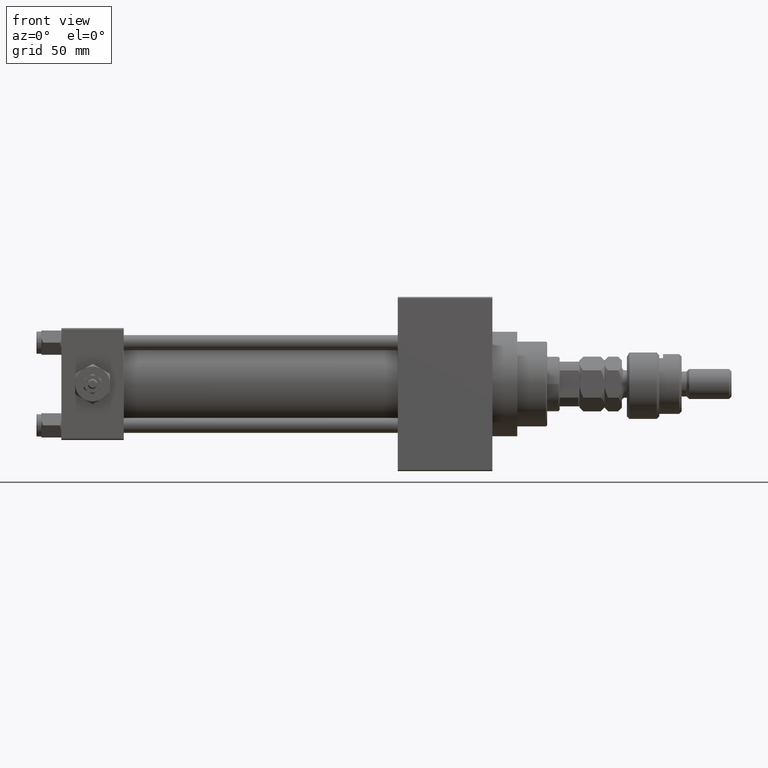
[diagram: clean part render]
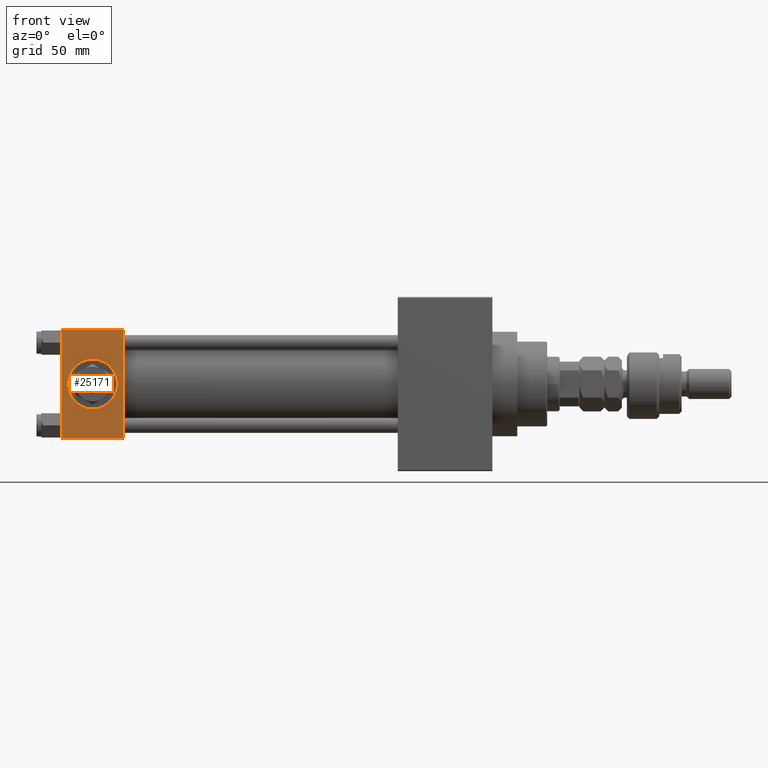
[diagram: same view with one face highlighted and labeled with its STEP entity id]
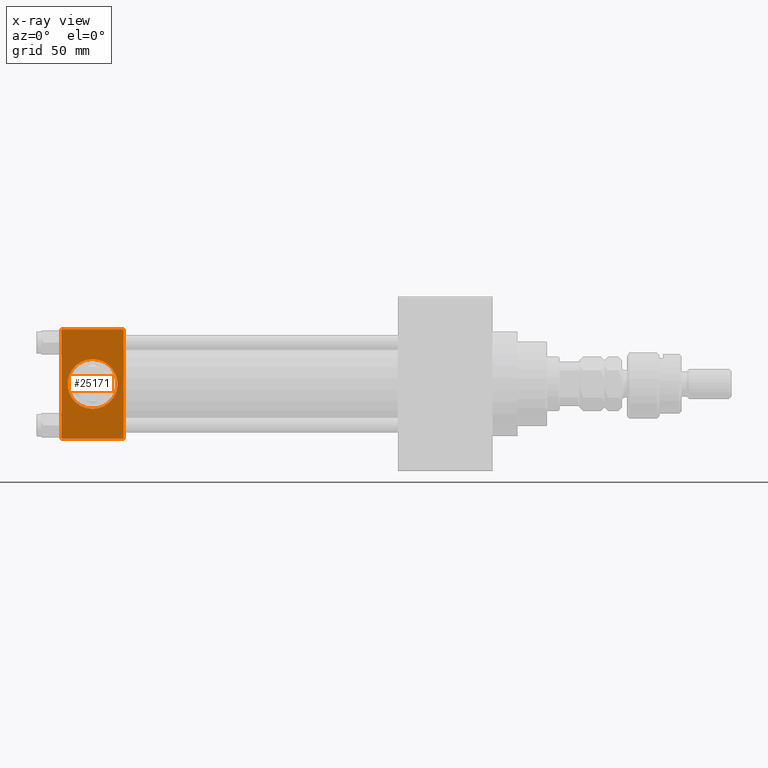
[diagram: x-ray of the same camera — body ghosted, the highlighted face saturated]
A machine part, front view. The second image highlights one B-rep face of the part: STEP entity #25171.
The next image is the same camera in x-ray: the body ghosted, the highlighted face saturated — about 0% of this face is hidden behind the body in this view.
In plain terms, the highlighted planar face has unit normal (0, 1, 0).
Its self-contained STEP definition (entity closure, byte-faithful):
#165 = CARTESIAN_POINT ( 'NONE',  ( 25.00000000000000000, -22.50000000000000000, 22.00000000000000000 ) ) ;
#990 = EDGE_CURVE ( 'NONE', #43841, #3898, #4434, .T. ) ;
#1032 = CARTESIAN_POINT ( 'NONE',  ( 12.50000000000000178, -22.50000000000000000, 9.999999999999996447 ) ) ;
#2196 = ORIENTED_EDGE ( 'NONE', *, *, #22861, .F. ) ;
#3586 = VECTOR ( 'NONE', #49709, 1000.000000000000000 ) ;
#3898 = VERTEX_POINT ( 'NONE', #6794 ) ;
#4434 = LINE ( 'NONE', #20307, #47448 ) ;
#4882 = VERTEX_POINT ( 'NONE', #1032 ) ;
#5470 = CARTESIAN_POINT ( 'NONE',  ( 0.000000000000000000, -22.50000000000000000, 22.50000000000000000 ) ) ;
#5773 = ORIENTED_EDGE ( 'NONE', *, *, #44000, .F. ) ;
#6484 = FACE_OUTER_BOUND ( 'NONE', #33107, .T. ) ;
#6531 = CARTESIAN_POINT ( 'NONE',  ( 25.00000000000000000, -22.50000000000000000, 22.50000000000000000 ) ) ;
#6794 = CARTESIAN_POINT ( 'NONE',  ( 25.00000000000000000, -22.50000000000000000, -21.99999999999997158 ) ) ;
#6922 = ORIENTED_EDGE ( 'NONE', *, *, #43957, .T. ) ;
#7278 = VECTOR ( 'NONE', #9392, 1000.000000000000000 ) ;
#8214 = CARTESIAN_POINT ( 'NONE',  ( 12.50000000000000000, -22.50000000000000000, -9.999999999999996447 ) ) ;
#9311 = ORIENTED_EDGE ( 'NONE', *, *, #34631, .T. ) ;
#9392 = DIRECTION ( 'NONE',  ( -1.000000000000000000, 0.000000000000000000, 0.000000000000000000 ) ) ;
#10162 = LINE ( 'NONE', #5470, #3586 ) ;
#10715 = DIRECTION ( 'NONE',  ( 0.000000000000000000, -1.000000000000000000, -8.673617379884036705E-17 ) ) ;
#10972 = DIRECTION ( 'NONE',  ( 0.000000000000000000, 0.000000000000000000, -1.000000000000000000 ) ) ;
#14293 = CARTESIAN_POINT ( 'NONE',  ( 0.000000000000000000, -22.50000000000000000, 22.00000000000000000 ) ) ;
#14539 = PLANE ( 'NONE',  #15041 ) ;
#14659 = EDGE_LOOP ( 'NONE', ( #39490, #2196 ) ) ;
#14799 = DIRECTION ( 'NONE',  ( 0.000000000000000000, -0.000000000000000000, 1.000000000000000000 ) ) ;
#15041 = AXIS2_PLACEMENT_3D ( 'NONE', #37963, #34833, #14799 ) ;
#15149 = DIRECTION ( 'NONE',  ( 0.000000000000000000, -1.000000000000000000, -8.673617379884036705E-17 ) ) ;
#16510 = ORIENTED_EDGE ( 'NONE', *, *, #990, .T. ) ;
#18763 = LINE ( 'NONE', #6531, #41321 ) ;
#18971 = FACE_BOUND ( 'NONE', #14659, .T. ) ;
#20307 = CARTESIAN_POINT ( 'NONE',  ( 25.00000000000000000, -22.50000000000000000, -21.99999999999998579 ) ) ;
#21103 = CARTESIAN_POINT ( 'NONE',  ( 25.00000000000000000, -22.50000000000000000, 22.00000000000000000 ) ) ;
#22861 = EDGE_CURVE ( 'NONE', #4882, #26671, #36573, .T. ) ;
#25171 = ADVANCED_FACE ( 'NONE', ( #18971, #6484 ), #14539, .F. ) ;
#26671 = VERTEX_POINT ( 'NONE', #8214 ) ;
#31250 = EDGE_CURVE ( 'NONE', #26671, #4882, #32633, .T. ) ;
#31774 = CARTESIAN_POINT ( 'NONE',  ( 12.50000000000000000, -22.50000000000000000, 0.000000000000000000 ) ) ;
#32633 = CIRCLE ( 'NONE', #44264, 9.999999999999996447 ) ;
#33033 = DIRECTION ( 'NONE',  ( 1.000000000000000000, 0.000000000000000000, 0.000000000000000000 ) ) ;
#33107 = EDGE_LOOP ( 'NONE', ( #9311, #16510, #5773, #6922 ) ) ;
#34631 = EDGE_CURVE ( 'NONE', #38820, #43841, #10162, .T. ) ;
#34833 = DIRECTION ( 'NONE',  ( -0.000000000000000000, 1.000000000000000000, 0.000000000000000000 ) ) ;
#34925 = DIRECTION ( 'NONE',  ( 0.000000000000000000, 0.000000000000000000, -1.000000000000000000 ) ) ;
#36573 = CIRCLE ( 'NONE', #46540, 9.999999999999996447 ) ;
#37963 = CARTESIAN_POINT ( 'NONE',  ( 25.00000000000000000, -22.50000000000000000, 22.50000000000000000 ) ) ;
#38006 = LINE ( 'NONE', #21103, #7278 ) ;
#38820 = VERTEX_POINT ( 'NONE', #14293 ) ;
#39490 = ORIENTED_EDGE ( 'NONE', *, *, #31250, .F. ) ;
#40774 = VERTEX_POINT ( 'NONE', #165 ) ;
#41134 = CARTESIAN_POINT ( 'NONE',  ( 0.000000000000000000, -22.50000000000000000, -21.99999999999997158 ) ) ;
#41321 = VECTOR ( 'NONE', #42688, 1000.000000000000000 ) ;
#42688 = DIRECTION ( 'NONE',  ( 0.000000000000000000, 0.000000000000000000, -1.000000000000000000 ) ) ;
#43841 = VERTEX_POINT ( 'NONE', #41134 ) ;
#43957 = EDGE_CURVE ( 'NONE', #40774, #38820, #38006, .T. ) ;
#44000 = EDGE_CURVE ( 'NONE', #40774, #3898, #18763, .T. ) ;
#44264 = AXIS2_PLACEMENT_3D ( 'NONE', #31774, #15149, #34925 ) ;
#46540 = AXIS2_PLACEMENT_3D ( 'NONE', #50015, #10715, #10972 ) ;
#47448 = VECTOR ( 'NONE', #33033, 1000.000000000000000 ) ;
#49709 = DIRECTION ( 'NONE',  ( 0.000000000000000000, 0.000000000000000000, -1.000000000000000000 ) ) ;
#50015 = CARTESIAN_POINT ( 'NONE',  ( 12.50000000000000000, -22.50000000000000000, 0.000000000000000000 ) ) ;